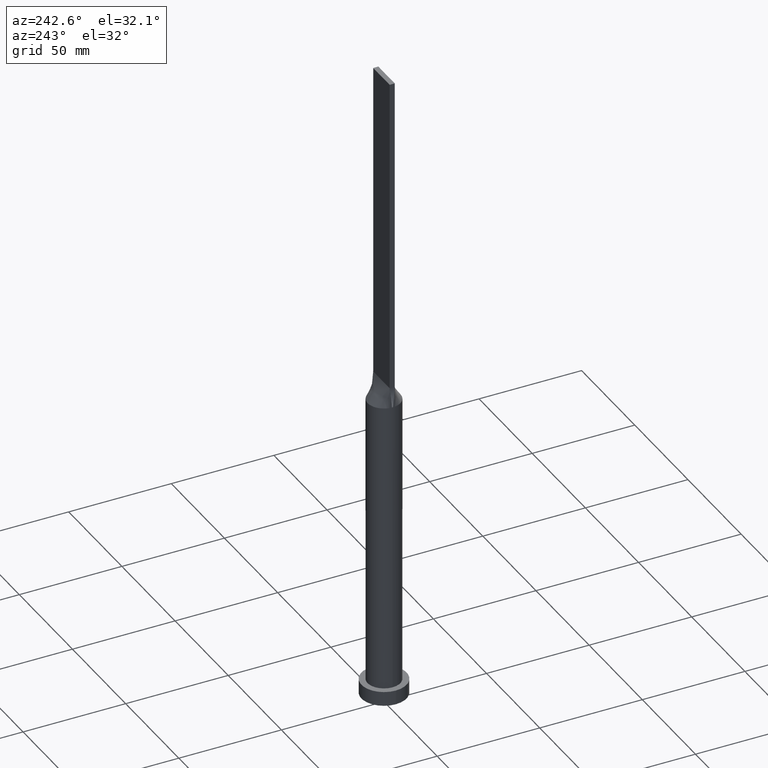
[diagram: clean part render]
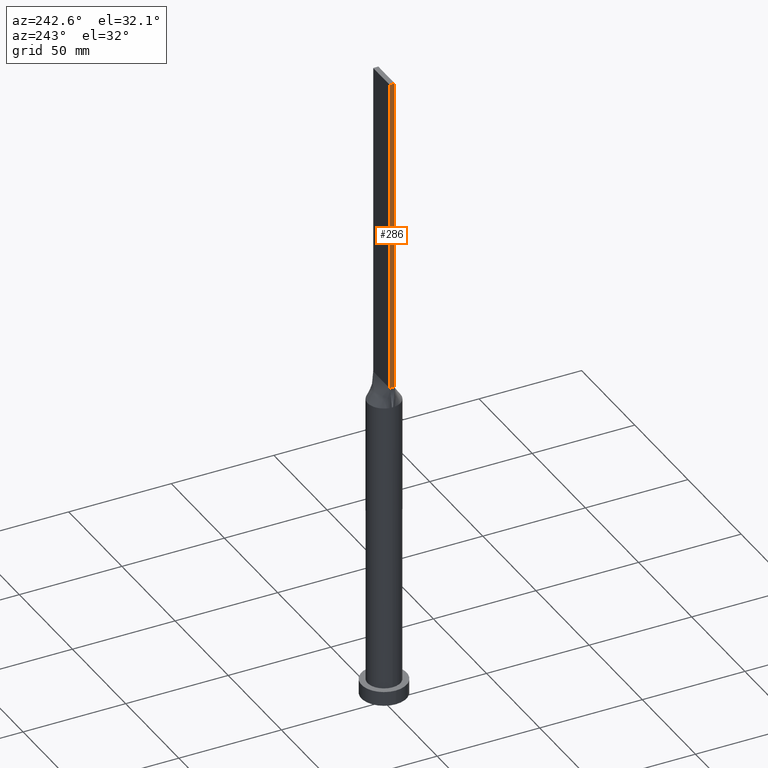
[diagram: same view with one face highlighted and labeled with its STEP entity id]
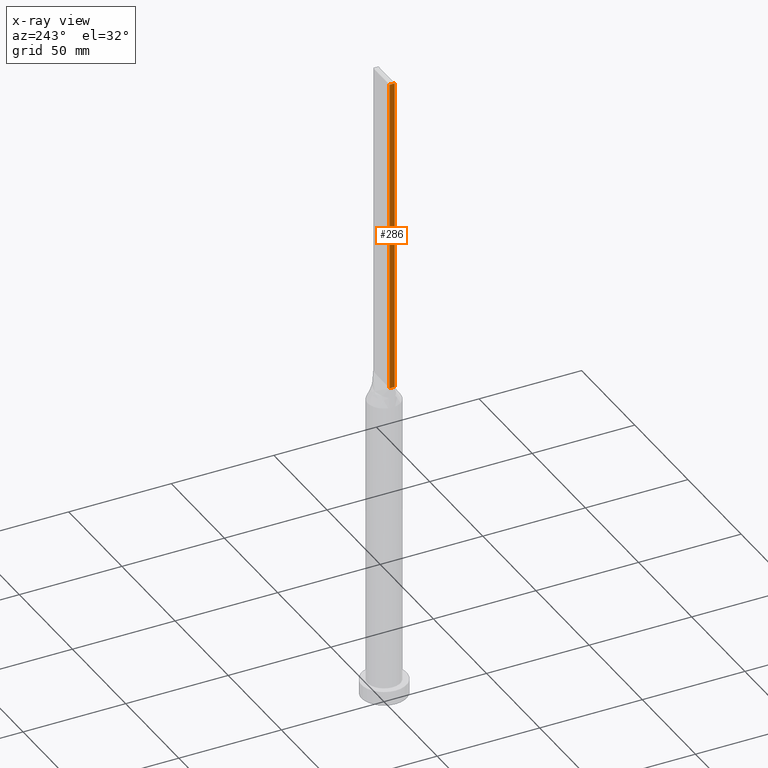
[diagram: x-ray of the same camera — body ghosted, the highlighted face saturated]
A machine part, auxiliary view. The second image highlights one B-rep face of the part: STEP entity #286.
The next image is the same camera in x-ray: the body ghosted, the highlighted face saturated — about 0% of this face is hidden behind the body in this view.
In plain terms, the highlighted planar face has unit normal (1, 0, -0).
Its self-contained STEP definition (entity closure, byte-faithful):
#15 = VECTOR ( 'NONE', #130, 1000.000000000000000 ) ;
#38 = DIRECTION ( 'NONE',  ( 0.000000000000000000, -1.000000000000000000, 0.000000000000000000 ) ) ;
#82 = VECTOR ( 'NONE', #38, 1000.000000000000000 ) ;
#106 = DIRECTION ( 'NONE',  ( 0.000000000000000000, -1.000000000000000000, 0.000000000000000000 ) ) ;
#111 = AXIS2_PLACEMENT_3D ( 'NONE', #434, #135, #338 ) ;
#130 = DIRECTION ( 'NONE',  ( -0.000000000000000000, -0.000000000000000000, -1.000000000000000000 ) ) ;
#135 = DIRECTION ( 'NONE',  ( 1.000000000000000000, 0.000000000000000000, -0.000000000000000000 ) ) ;
#138 = CARTESIAN_POINT ( 'NONE',  ( -7.750000000000000000, 1.250000000000000222, 315.0000000000000000 ) ) ;
#165 = VERTEX_POINT ( 'NONE', #339 ) ;
#179 = EDGE_CURVE ( 'NONE', #165, #529, #254, .T. ) ;
#188 = LINE ( 'NONE', #138, #324 ) ;
#209 = ORIENTED_EDGE ( 'NONE', *, *, #179, .F. ) ;
#238 = FACE_OUTER_BOUND ( 'NONE', #451, .T. ) ;
#246 = CARTESIAN_POINT ( 'NONE',  ( -7.750000000000000000, -1.249999999999998890, 160.0000000000000000 ) ) ;
#254 = LINE ( 'NONE', #602, #429 ) ;
#261 = ORIENTED_EDGE ( 'NONE', *, *, #319, .T. ) ;
#286 = ADVANCED_FACE ( 'NONE', ( #238 ), #288, .F. ) ;
#288 = PLANE ( 'NONE',  #111 ) ;
#306 = EDGE_CURVE ( 'NONE', #326, #638, #485, .T. ) ;
#319 = EDGE_CURVE ( 'NONE', #165, #326, #188, .T. ) ;
#324 = VECTOR ( 'NONE', #488, 1000.000000000000000 ) ;
#326 = VERTEX_POINT ( 'NONE', #581 ) ;
#338 = DIRECTION ( 'NONE',  ( -0.000000000000000000, 0.000000000000000000, -1.000000000000000000 ) ) ;
#339 = CARTESIAN_POINT ( 'NONE',  ( -7.750000000000000000, 1.250000000000000222, 315.0000000000000000 ) ) ;
#388 = CARTESIAN_POINT ( 'NONE',  ( -7.750000000000000000, -1.249999999999998890, 315.0000000000000000 ) ) ;
#389 = CARTESIAN_POINT ( 'NONE',  ( -7.750000000000000000, 1.250000000000000222, 160.0000000000000000 ) ) ;
#400 = CARTESIAN_POINT ( 'NONE',  ( -7.750000000000000000, -1.249999999999998890, 315.0000000000000000 ) ) ;
#429 = VECTOR ( 'NONE', #106, 1000.000000000000000 ) ;
#434 = CARTESIAN_POINT ( 'NONE',  ( -7.750000000000000000, 1.250000000000000222, 315.0000000000000000 ) ) ;
#451 = EDGE_LOOP ( 'NONE', ( #521, #590, #209, #261 ) ) ;
#485 = LINE ( 'NONE', #389, #82 ) ;
#488 = DIRECTION ( 'NONE',  ( -0.000000000000000000, -0.000000000000000000, -1.000000000000000000 ) ) ;
#521 = ORIENTED_EDGE ( 'NONE', *, *, #306, .T. ) ;
#529 = VERTEX_POINT ( 'NONE', #400 ) ;
#559 = EDGE_CURVE ( 'NONE', #529, #638, #641, .T. ) ;
#581 = CARTESIAN_POINT ( 'NONE',  ( -7.750000000000000000, 1.250000000000000222, 160.0000000000000000 ) ) ;
#590 = ORIENTED_EDGE ( 'NONE', *, *, #559, .F. ) ;
#602 = CARTESIAN_POINT ( 'NONE',  ( -7.750000000000000000, 1.250000000000000222, 315.0000000000000000 ) ) ;
#638 = VERTEX_POINT ( 'NONE', #246 ) ;
#641 = LINE ( 'NONE', #388, #15 ) ;